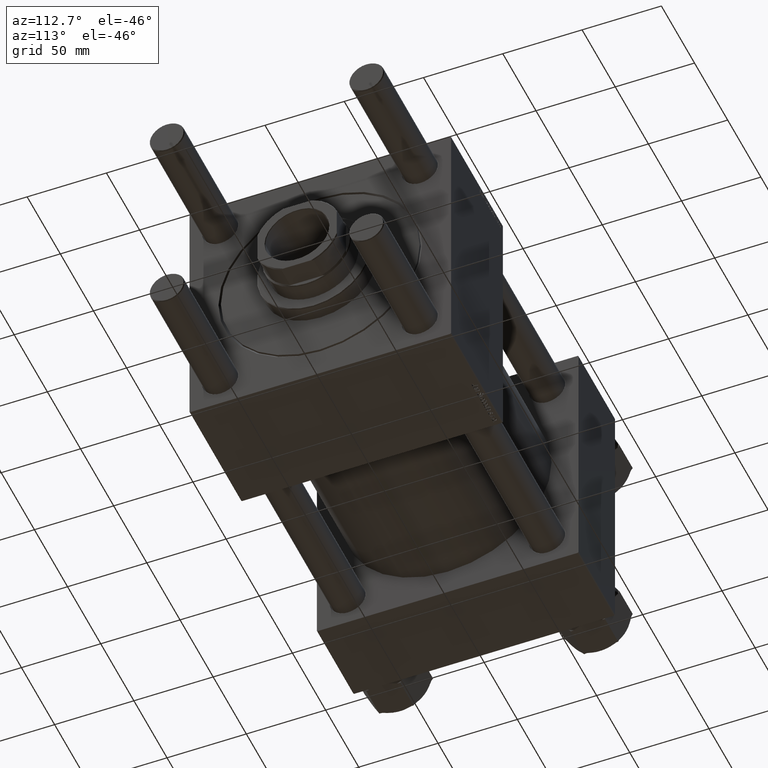
[diagram: clean part render]
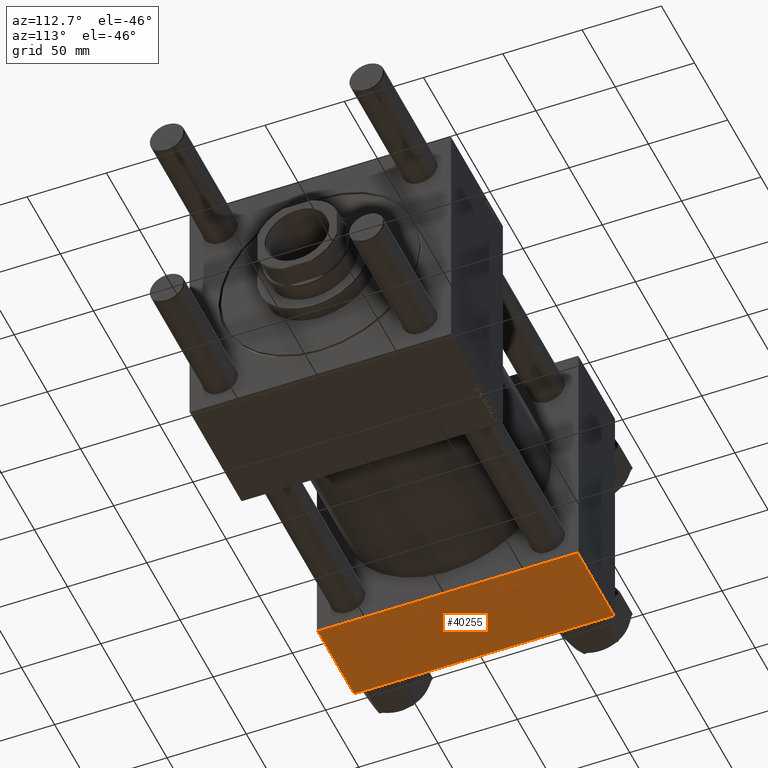
[diagram: same view with one face highlighted and labeled with its STEP entity id]
A machine part, auxiliary view. The second image highlights one B-rep face of the part: STEP entity #40255.
In plain terms, the highlighted planar face has unit normal (0, 0, -1).
Its self-contained STEP definition (entity closure, byte-faithful):
#228 = DIRECTION ( 'NONE',  ( 0.000000000000000000, -1.000000000000000000, -1.682156097916903588E-16 ) ) ;
#1708 = CARTESIAN_POINT ( 'NONE',  ( 55.00000000000000000, 82.00000000000005684, -82.49999999999997158 ) ) ;
#2512 = ORIENTED_EDGE ( 'NONE', *, *, #17462, .T. ) ;
#2562 = DIRECTION ( 'NONE',  ( -1.000000000000000000, 0.000000000000000000, 0.000000000000000000 ) ) ;
#3672 = CARTESIAN_POINT ( 'NONE',  ( 55.00000000000000000, 82.00000000000005684, -82.49999999999997158 ) ) ;
#6795 = CARTESIAN_POINT ( 'NONE',  ( 0.000000000000000000, -82.00000000000000000, -82.50000000000000000 ) ) ;
#7207 = DIRECTION ( 'NONE',  ( 0.000000000000000000, 1.682156097916903588E-16, -1.000000000000000000 ) ) ;
#9159 = CARTESIAN_POINT ( 'NONE',  ( 0.000000000000000000, 82.00000000000005684, -82.49999999999997158 ) ) ;
#11293 = CARTESIAN_POINT ( 'NONE',  ( 55.00000000000000000, 82.50000000000002842, -82.49999999999997158 ) ) ;
#11846 = LINE ( 'NONE', #29490, #51036 ) ;
#12569 = EDGE_CURVE ( 'NONE', #37888, #57236, #44227, .T. ) ;
#14529 = VECTOR ( 'NONE', #16410, 1000.000000000000000 ) ;
#16410 = DIRECTION ( 'NONE',  ( 1.000000000000000000, 0.000000000000000000, 0.000000000000000000 ) ) ;
#17462 = EDGE_CURVE ( 'NONE', #28298, #57236, #11846, .T. ) ;
#22250 = CARTESIAN_POINT ( 'NONE',  ( 0.000000000000000000, 82.50000000000002842, -82.49999999999997158 ) ) ;
#22663 = ORIENTED_EDGE ( 'NONE', *, *, #32147, .T. ) ;
#23098 = LINE ( 'NONE', #44223, #27492 ) ;
#24423 = AXIS2_PLACEMENT_3D ( 'NONE', #11293, #7207, #47150 ) ;
#26258 = LINE ( 'NONE', #3672, #14529 ) ;
#27307 = ORIENTED_EDGE ( 'NONE', *, *, #12569, .F. ) ;
#27492 = VECTOR ( 'NONE', #45355, 1000.000000000000000 ) ;
#28298 = VERTEX_POINT ( 'NONE', #42066 ) ;
#28652 = PLANE ( 'NONE',  #24423 ) ;
#29490 = CARTESIAN_POINT ( 'NONE',  ( 0.000000000000000000, -82.00000000000000000, -82.50000000000000000 ) ) ;
#29702 = EDGE_LOOP ( 'NONE', ( #27307, #22663, #51170, #2512 ) ) ;
#32147 = EDGE_CURVE ( 'NONE', #37888, #50469, #26258, .T. ) ;
#37888 = VERTEX_POINT ( 'NONE', #9159 ) ;
#40255 = ADVANCED_FACE ( 'NONE', ( #56144 ), #28652, .T. ) ;
#42066 = CARTESIAN_POINT ( 'NONE',  ( 55.00000000000000000, -82.00000000000000000, -82.50000000000000000 ) ) ;
#42690 = VECTOR ( 'NONE', #228, 1000.000000000000000 ) ;
#44223 = CARTESIAN_POINT ( 'NONE',  ( 55.00000000000000000, 82.50000000000002842, -82.49999999999997158 ) ) ;
#44227 = LINE ( 'NONE', #22250, #42690 ) ;
#45355 = DIRECTION ( 'NONE',  ( 0.000000000000000000, -1.000000000000000000, -1.682156097916903588E-16 ) ) ;
#47150 = DIRECTION ( 'NONE',  ( 0.000000000000000000, 1.000000000000000000, 1.682156097916903588E-16 ) ) ;
#50469 = VERTEX_POINT ( 'NONE', #1708 ) ;
#50628 = EDGE_CURVE ( 'NONE', #50469, #28298, #23098, .T. ) ;
#51036 = VECTOR ( 'NONE', #2562, 1000.000000000000000 ) ;
#51170 = ORIENTED_EDGE ( 'NONE', *, *, #50628, .T. ) ;
#56144 = FACE_OUTER_BOUND ( 'NONE', #29702, .T. ) ;
#57236 = VERTEX_POINT ( 'NONE', #6795 ) ;